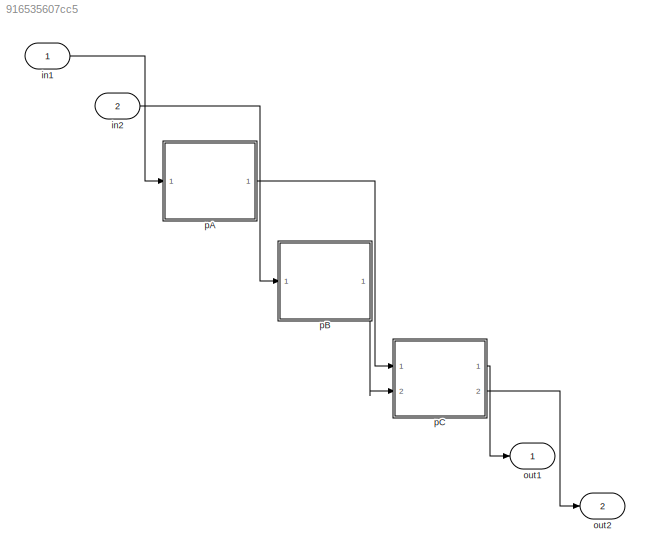
MODEL slx_916535607cc5
KIND model
CONFIG AbsTol = auto
CONFIG EnableMultiTasking = off
CONFIG FixedStep = auto
CONFIG MaxStep = auto
CONFIG MinStep = auto
CONFIG RelTol = 1e-3
CONFIG SampleTimeConstraint = Unconstrained
CONFIG Solver = VariableStepAuto
CONFIG SolverName = VariableStepAuto
CONFIG StartTime = 0.0
CONFIG StopTime = 10.0
BLOCK [Inport] in1
  IconDisplay = Port number
  OutDataTypeStr = double
BLOCK [Inport] in2
  IconDisplay = Port number
  OutDataTypeStr = int32
  Port = 2
BLOCK [Outport] out1
  IconDisplay = Port number
  OutDataTypeStr = double
BLOCK [Outport] out2
  IconDisplay = Port number
  OutDataTypeStr = boolean
  Port = 2
BLOCK [ModelReference] pA
  ModelNameDialog = PartA
  ModelReferenceVersion = 1.1
  Ports = [1, 1]
BLOCK [ModelReference] pB
  ModelNameDialog = PartB
  ModelReferenceVersion = 1.1
  Ports = [1, 1]
BLOCK [ModelReference] pC
  ModelNameDialog = PartC
  ModelReferenceVersion = 1.1
  Ports = [2, 2]
LINE in1:1 -> pA:1
LINE in2:1 -> pB:1
LINE pA:1 -> pC:1
LINE pB:1 -> pC:2
LINE pC:1 -> out1:1
LINE pC:2 -> out2:1
